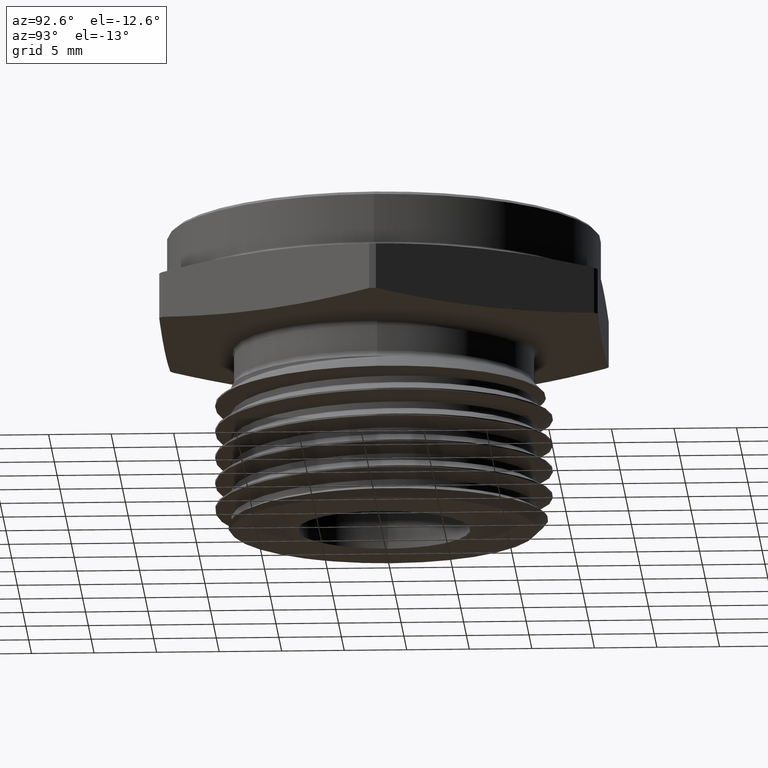
[diagram: clean part render]
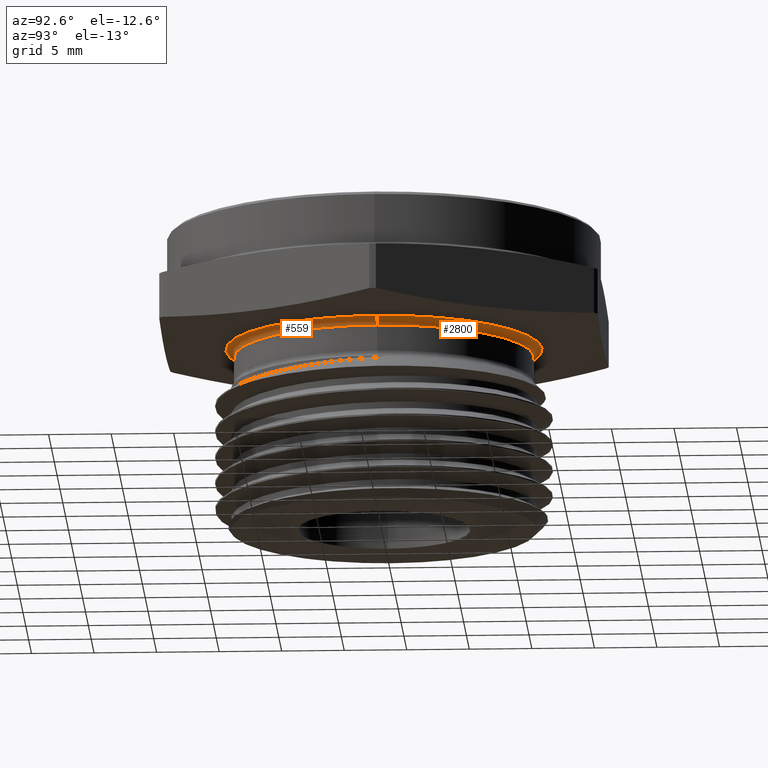
[diagram: same view with one multi-face feature highlighted, each face labeled with its STEP entity id]
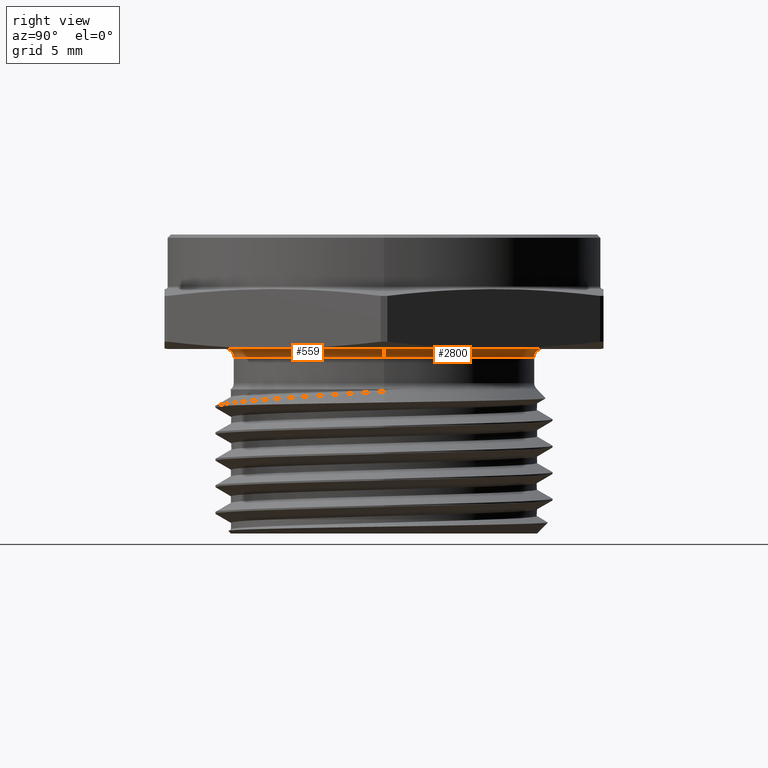
[diagram: same view with one multi-face feature highlighted, each face labeled with its STEP entity id]
A machine part, auxiliary view. The highlighted faces form ONE feature: a constant-radius fillet chain: 2 tangent blend faces with common blend radius 0.635 mm. The faces share edges in the B-rep.
A second angle (right view) of the same feature is appended — it is thin or edge-on in the first view.
Their STEP definitions:
[1] entity #2800 (Torus):
#332 = CARTESIAN_POINT ( 'NONE',  ( 0.0000000000000000000, 0.0000000000000000000, -8.537024980200822600E-018 ) ) ;
#333 = DIRECTION ( 'NONE',  ( -0.0000000000000000000, -0.0000000000000000000, 1.000000000000000000 ) ) ;
#334 = DIRECTION ( 'NONE',  ( 1.000000000000000000, 0.0000000000000000000, 0.0000000000000000000 ) ) ;
#736 = TOROIDAL_SURFACE ( 'NONE', #1572, 0.4974999999999999400, 0.02500000000000000500 ) ;
#737 = FACE_OUTER_BOUND ( 'NONE', #2458, .T. ) ;
#858 = CIRCLE ( 'NONE', #1543, 0.4974999999999999400 ) ;
#1512 = AXIS2_PLACEMENT_3D ( 'NONE', #2404, #2403, #2402 ) ;
#1519 = AXIS2_PLACEMENT_3D ( 'NONE', #2369, #2368, #2367 ) ;
#1521 = AXIS2_PLACEMENT_3D ( 'NONE', #2361, #2360, #2359 ) ;
#1543 = AXIS2_PLACEMENT_3D ( 'NONE', #332, #333, #334 ) ;
#1572 = AXIS2_PLACEMENT_3D ( 'NONE', #1969, #1967, #1971 ) ;
#1894 = CARTESIAN_POINT ( 'NONE',  ( 0.4974999999999999400, 0.0000000000000000000, -6.402768735150616900E-018 ) ) ;
#1895 = CARTESIAN_POINT ( 'NONE',  ( 0.4724999999999999200, 0.0000000000000000000, -0.02500000000000001500 ) ) ;
#1911 = CARTESIAN_POINT ( 'NONE',  ( -0.4724999999999999200, 5.786456125971242800E-017, -0.02500000000000001500 ) ) ;
#1917 = CARTESIAN_POINT ( 'NONE',  ( -0.4974999999999999400, 6.092617825758081700E-017, -6.402768735150616900E-018 ) ) ;
#1967 = DIRECTION ( 'NONE',  ( -0.0000000000000000000, -0.0000000000000000000, 1.000000000000000000 ) ) ;
#1969 = CARTESIAN_POINT ( 'NONE',  ( 0.0000000000000000000, 0.0000000000000000000, -0.02500000000000001200 ) ) ;
#1971 = DIRECTION ( 'NONE',  ( 1.000000000000000000, 0.0000000000000000000, 0.0000000000000000000 ) ) ;
#2359 = DIRECTION ( 'NONE',  ( -1.000000000000000000, 1.224646799147351700E-016, 0.0000000000000000000 ) ) ;
#2360 = DIRECTION ( 'NONE',  ( 1.224646799147353200E-016, 1.000000000000000000, 0.0000000000000000000 ) ) ;
#2361 = CARTESIAN_POINT ( 'NONE',  ( -0.4974999999999999400, 6.092617825758081700E-017, -0.02500000000000001200 ) ) ;
#2367 = DIRECTION ( 'NONE',  ( 0.0000000000000000000, 0.0000000000000000000, -1.000000000000000000 ) ) ;
#2368 = DIRECTION ( 'NONE',  ( 0.0000000000000000000, -1.000000000000000000, 0.0000000000000000000 ) ) ;
#2369 = CARTESIAN_POINT ( 'NONE',  ( 0.4974999999999999400, 0.0000000000000000000, -0.02500000000000001200 ) ) ;
#2402 = DIRECTION ( 'NONE',  ( 1.000000000000000000, 0.0000000000000000000, 0.0000000000000000000 ) ) ;
#2403 = DIRECTION ( 'NONE',  ( -0.0000000000000000000, -0.0000000000000000000, 1.000000000000000000 ) ) ;
#2404 = CARTESIAN_POINT ( 'NONE',  ( 0.0000000000000000000, 0.0000000000000000000, -0.02500000000000001500 ) ) ;
#2458 = EDGE_LOOP ( 'NONE', ( #2897, #2898, #2899, #2900 ) ) ;
#2523 = EDGE_CURVE ( 'NONE', #2728, #2747, #2854, .T. ) ;
#2535 = EDGE_CURVE ( 'NONE', #2727, #2728, #2864, .T. ) ;
#2538 = EDGE_CURVE ( 'NONE', #2753, #2747, #2869, .T. ) ;
#2601 = EDGE_CURVE ( 'NONE', #2727, #2753, #858, .T. ) ;
#2727 = VERTEX_POINT ( 'NONE', #1894 ) ;
#2728 = VERTEX_POINT ( 'NONE', #1895 ) ;
#2747 = VERTEX_POINT ( 'NONE', #1911 ) ;
#2753 = VERTEX_POINT ( 'NONE', #1917 ) ;
#2800 = ADVANCED_FACE ( 'NONE', ( #737 ), #736, .F. ) ;
#2854 = CIRCLE ( 'NONE', #1512, 0.4724999999999999200 ) ;
#2864 = CIRCLE ( 'NONE', #1519, 0.02500000000000000100 ) ;
#2869 = CIRCLE ( 'NONE', #1521, 0.02500000000000000500 ) ;
#2897 = ORIENTED_EDGE ( 'NONE', *, *, #2538, .F. ) ;
#2898 = ORIENTED_EDGE ( 'NONE', *, *, #2601, .F. ) ;
#2899 = ORIENTED_EDGE ( 'NONE', *, *, #2535, .T. ) ;
#2900 = ORIENTED_EDGE ( 'NONE', *, *, #2523, .T. ) ;
[2] entity #559 (Torus):
#559 = ADVANCED_FACE ( 'NONE', ( #796 ), #763, .F. ) ;
#630 = ORIENTED_EDGE ( 'NONE', *, *, #2542, .F. ) ;
#631 = ORIENTED_EDGE ( 'NONE', *, *, #2538, .T. ) ;
#632 = ORIENTED_EDGE ( 'NONE', *, *, #2534, .T. ) ;
#633 = ORIENTED_EDGE ( 'NONE', *, *, #2535, .F. ) ;
#647 = EDGE_LOOP ( 'NONE', ( #630, #631, #632, #633 ) ) ;
#763 = TOROIDAL_SURFACE ( 'NONE', #2664, 0.4974999999999999400, 0.02500000000000000500 ) ;
#796 = FACE_OUTER_BOUND ( 'NONE', #647, .T. ) ;
#1518 = AXIS2_PLACEMENT_3D ( 'NONE', #2373, #2372, #2371 ) ;
#1519 = AXIS2_PLACEMENT_3D ( 'NONE', #2369, #2368, #2367 ) ;
#1521 = AXIS2_PLACEMENT_3D ( 'NONE', #2361, #2360, #2359 ) ;
#1524 = AXIS2_PLACEMENT_3D ( 'NONE', #2307, #2306, #2305 ) ;
#1894 = CARTESIAN_POINT ( 'NONE',  ( 0.4974999999999999400, 0.0000000000000000000, -6.402768735150616900E-018 ) ) ;
#1895 = CARTESIAN_POINT ( 'NONE',  ( 0.4724999999999999200, 0.0000000000000000000, -0.02500000000000001500 ) ) ;
#1911 = CARTESIAN_POINT ( 'NONE',  ( -0.4724999999999999200, 5.786456125971242800E-017, -0.02500000000000001500 ) ) ;
#1917 = CARTESIAN_POINT ( 'NONE',  ( -0.4974999999999999400, 6.092617825758081700E-017, -6.402768735150616900E-018 ) ) ;
#2305 = DIRECTION ( 'NONE',  ( 1.000000000000000000, 0.0000000000000000000, 0.0000000000000000000 ) ) ;
#2306 = DIRECTION ( 'NONE',  ( -0.0000000000000000000, -0.0000000000000000000, 1.000000000000000000 ) ) ;
#2307 = CARTESIAN_POINT ( 'NONE',  ( 0.0000000000000000000, 0.0000000000000000000, -8.537024980200822600E-018 ) ) ;
#2359 = DIRECTION ( 'NONE',  ( -1.000000000000000000, 1.224646799147351700E-016, 0.0000000000000000000 ) ) ;
#2360 = DIRECTION ( 'NONE',  ( 1.224646799147353200E-016, 1.000000000000000000, 0.0000000000000000000 ) ) ;
#2361 = CARTESIAN_POINT ( 'NONE',  ( -0.4974999999999999400, 6.092617825758081700E-017, -0.02500000000000001200 ) ) ;
#2367 = DIRECTION ( 'NONE',  ( 0.0000000000000000000, 0.0000000000000000000, -1.000000000000000000 ) ) ;
#2368 = DIRECTION ( 'NONE',  ( 0.0000000000000000000, -1.000000000000000000, 0.0000000000000000000 ) ) ;
#2369 = CARTESIAN_POINT ( 'NONE',  ( 0.4974999999999999400, 0.0000000000000000000, -0.02500000000000001200 ) ) ;
#2371 = DIRECTION ( 'NONE',  ( 1.000000000000000000, 0.0000000000000000000, 0.0000000000000000000 ) ) ;
#2372 = DIRECTION ( 'NONE',  ( -0.0000000000000000000, -0.0000000000000000000, 1.000000000000000000 ) ) ;
#2373 = CARTESIAN_POINT ( 'NONE',  ( 0.0000000000000000000, 0.0000000000000000000, -0.02500000000000001500 ) ) ;
#2534 = EDGE_CURVE ( 'NONE', #2747, #2728, #2862, .T. ) ;
#2535 = EDGE_CURVE ( 'NONE', #2727, #2728, #2864, .T. ) ;
#2538 = EDGE_CURVE ( 'NONE', #2753, #2747, #2869, .T. ) ;
#2542 = EDGE_CURVE ( 'NONE', #2753, #2727, #2868, .T. ) ;
#2664 = AXIS2_PLACEMENT_3D ( 'NONE', #3166, #3167, #3163 ) ;
#2727 = VERTEX_POINT ( 'NONE', #1894 ) ;
#2728 = VERTEX_POINT ( 'NONE', #1895 ) ;
#2747 = VERTEX_POINT ( 'NONE', #1911 ) ;
#2753 = VERTEX_POINT ( 'NONE', #1917 ) ;
#2862 = CIRCLE ( 'NONE', #1518, 0.4724999999999999200 ) ;
#2864 = CIRCLE ( 'NONE', #1519, 0.02500000000000000100 ) ;
#2868 = CIRCLE ( 'NONE', #1524, 0.4974999999999999400 ) ;
#2869 = CIRCLE ( 'NONE', #1521, 0.02500000000000000500 ) ;
#3163 = DIRECTION ( 'NONE',  ( 1.000000000000000000, 0.0000000000000000000, 0.0000000000000000000 ) ) ;
#3166 = CARTESIAN_POINT ( 'NONE',  ( 0.0000000000000000000, 0.0000000000000000000, -0.02500000000000001200 ) ) ;
#3167 = DIRECTION ( 'NONE',  ( -0.0000000000000000000, -0.0000000000000000000, 1.000000000000000000 ) ) ;